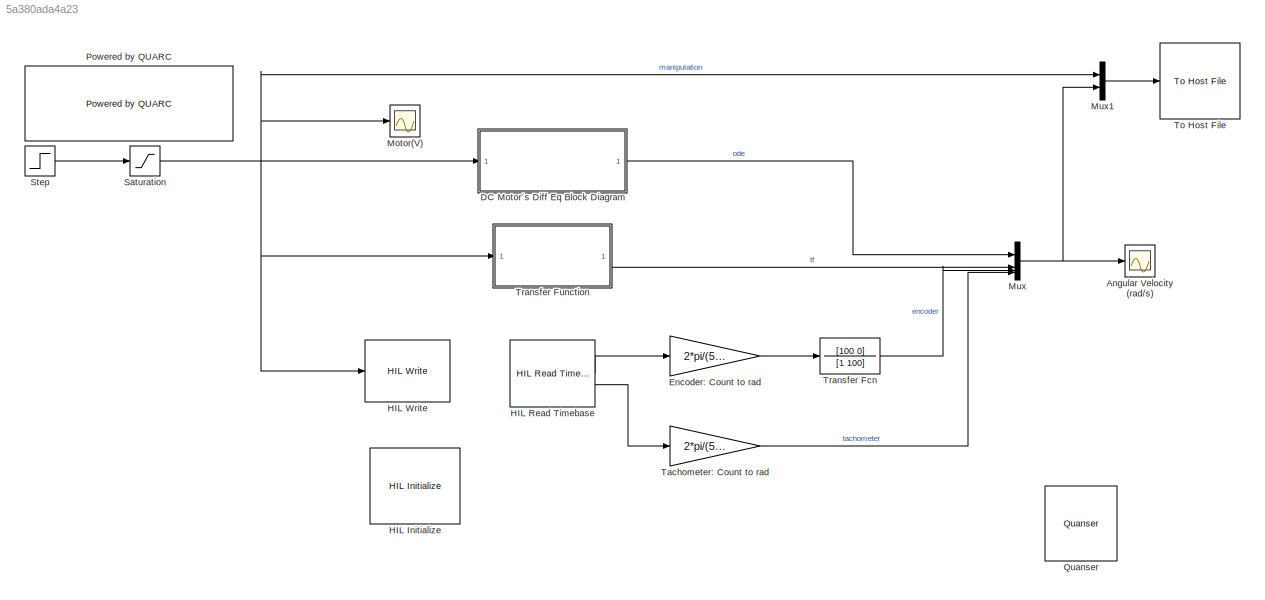
MODEL slx_5a380ada4a23
KIND model
CONFIG AbsTol = auto
CONFIG EnableMultiTasking = on
CONFIG FixedStep = 0.002
CONFIG MaxStep = auto
CONFIG MinStep = auto
CONFIG RelTol = 1e-3
CONFIG SampleTimeConstraint = Unconstrained
CONFIG SolverName = ode1
CONFIG StartTime = 0.0
CONFIG StopTime = 10
BLOCK [Scope] Angular Velocity (rad//s)
  Floating = off
  NumInputPorts = 1
  ScopeSpecificationString = Simulink.scopes.TimeScopeBlockCfg('CurrentConfiguration', extmgr.ConfigurationSet(extmgr.Configuration('Core','General UI',true,'FigureColor',[1 1 1]),extmgr.Configuration('Core','Source UI',true),extmgr.Configuration('Sources','WiredSimulink',true),extmgr.Configuration('Visuals','Time Domain',true,'SerializedDisplays',{struct('MinYLimReal','-15.54726','MaxYLimReal','139.92537','YLabelReal','DC Mo...<+1929ch>
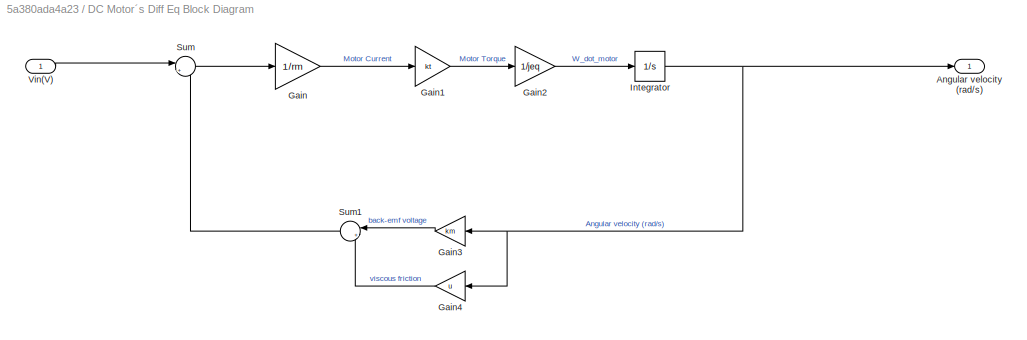
BLOCK [SubSystem] DC Motor´s Diff Eq Block Diagram
BLOCK [Outport] DC Motor´s Diff Eq Block Diagram/Angular velocity (rad//s)
BLOCK [Gain] DC Motor´s Diff Eq Block Diagram/Gain
  Gain = 1/rm
BLOCK [Gain] DC Motor´s Diff Eq Block Diagram/Gain1
  Gain = kt
BLOCK [Gain] DC Motor´s Diff Eq Block Diagram/Gain2
  Gain = 1/jeq
BLOCK [Gain] DC Motor´s Diff Eq Block Diagram/Gain3
  Gain = km
  NameLocation = top
BLOCK [Gain] DC Motor´s Diff Eq Block Diagram/Gain4
  Gain = u
  NameLocation = top
BLOCK [Integrator] DC Motor´s Diff Eq Block Diagram/Integrator
BLOCK [Sum] DC Motor´s Diff Eq Block Diagram/Sum
  Inputs = |+-
BLOCK [Sum] DC Motor´s Diff Eq Block Diagram/Sum1
  Inputs = |++
  NameLocation = top
BLOCK [Inport] DC Motor´s Diff Eq Block Diagram/Vin(V)
BLOCK [Gain] Encoder: Count to rad
  Gain = 2*pi/(512*4)
BLOCK [Reference] HIL Initialize  REF=quarc_library/Data Acquisition/Generic/Configuration/HIL Initialize
  AttributesFormatString = %<object_name> (%<board_type>-%<board_number>)
  SourceBlock = quarc_library/Data Acquisition/Generic/Configuration/HIL Initialize
  SourceProductName = QUARC Targets
  SourceType = HIL Initialize
  UserDataPersistent = on
BLOCK [Reference] HIL Read Timebase  REF=quarc_library/Data Acquisition/Generic/Timebases/HIL Read
Timebase
  AttributesFormatString = (%<object_name>)
  SourceBlock = quarc_library/Data Acquisition/Generic/Timebases/HIL Read\nTimebase
  SourceProductName = QUARC Targets
  SourceType = HIL Read Timebase
  UserDataPersistent = on
BLOCK [Reference] HIL Write  REF=quarc_library/Data Acquisition/Generic/Immediate I//O/HIL Write
  AttributesFormatString = (%<object_name>)
  SourceBlock = quarc_library/Data Acquisition/Generic/Immediate I//O/HIL Write
  SourceProductName = QUARC Targets
  SourceType = HIL Write
  UserDataPersistent = on
BLOCK [Scope] Motor(V)
  Floating = off
  NumInputPorts = 1
  ScopeSpecificationString = Simulink.scopes.TimeScopeBlockCfg('CurrentConfiguration', extmgr.ConfigurationSet(extmgr.Configuration('Core','General UI',true,'FigureColor',[1 1 1]),extmgr.Configuration('Core','Source UI',true),extmgr.Configuration('Sources','WiredSimulink',true,'DataLoggingVariableName','ScopeData1'),extmgr.Configuration('Visuals','Time Domain',true,'SerializedDisplays',{struct('MinYLimReal','2.75','MaxYLimRea...<+1526ch>
BLOCK [Mux] Mux
  DisplayOption = bar
BLOCK [Mux] Mux1
  DisplayOption = bar
  Inputs = 2
BLOCK [Reference] Powered by QUARC  REF=quarc_library/Logos/Powered by QUARC
  SourceBlock = quarc_library/Logos/Powered by QUARC
  SourceProductName = QUARC Targets
  SourceType = Powered by QUARC
BLOCK [Reference] Quanser  REF=quarc_library/Logos/Quanser
  SourceBlock = quarc_library/Logos/Quanser
  SourceProductName = QUARC Targets
  SourceType = Powered by Quanser
BLOCK [Saturate] Saturation
  LowerLimit = -10
  UpperLimit = 10
BLOCK [Step] Step
  After = 5
  Before = 3
  SampleTime = 0
  Time = 3
BLOCK [Gain] Tachometer: Count to rad
  Gain = 2*pi/(512*4)
BLOCK [Reference] To Host File  REF=quarc_library/Sinks/To Host/To Host File
  AttributesFormatString = %<final_file_name>
  SourceBlock = quarc_library/Sinks/To Host/To Host File
  SourceProductName = QUARC Targets
  SourceType = To Host File
BLOCK [TransferFcn] Transfer Fcn
  Denominator = [1 100]
  Numerator = [100 0]
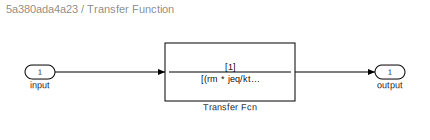
BLOCK [SubSystem] Transfer Function
BLOCK [TransferFcn] Transfer Function/Transfer Fcn
  Denominator = [(rm * jeq/kt) (km+u)]
BLOCK [Inport] Transfer Function/input
BLOCK [Outport] Transfer Function/output
LINE DC Motor´s Diff Eq Block Diagram/Gain1:1 -> DC Motor´s Diff Eq Block Diagram/Gain2:1
LINE DC Motor´s Diff Eq Block Diagram/Gain2:1 -> DC Motor´s Diff Eq Block Diagram/Integrator:1
LINE DC Motor´s Diff Eq Block Diagram/Gain3:1 -> DC Motor´s Diff Eq Block Diagram/Sum1:1
LINE DC Motor´s Diff Eq Block Diagram/Gain4:1 -> DC Motor´s Diff Eq Block Diagram/Sum1:2
LINE DC Motor´s Diff Eq Block Diagram/Gain:1 -> DC Motor´s Diff Eq Block Diagram/Gain1:1
NET DC Motor´s Diff Eq Block Diagram/Integrator:1 -> DC Motor´s Diff Eq Block Diagram/Angular velocity (rad//s):1, DC Motor´s Diff Eq Block Diagram/Gain3:1, DC Motor´s Diff Eq Block Diagram/Gain4:1
LINE DC Motor´s Diff Eq Block Diagram/Sum1:1 -> DC Motor´s Diff Eq Block Diagram/Sum:2
LINE DC Motor´s Diff Eq Block Diagram/Sum:1 -> DC Motor´s Diff Eq Block Diagram/Gain:1
LINE DC Motor´s Diff Eq Block Diagram/Vin(V):1 -> DC Motor´s Diff Eq Block Diagram/Sum:1
LINE DC Motor´s Diff Eq Block Diagram:1 -> Mux:1
LINE Encoder: Count to rad:1 -> Transfer Fcn:1
LINE HIL Read Timebase:1 -> Encoder: Count to rad:1
LINE HIL Read Timebase:2 -> Tachometer: Count to rad:1
LINE Mux1:1 -> To Host File:1
NET Mux:1 -> Angular Velocity (rad//s):1, Mux1:2
NET Saturation:1 -> DC Motor´s Diff Eq Block Diagram:1, HIL Write:1, Motor(V):1, Mux1:1, Transfer Function:1
LINE Step:1 -> Saturation:1
LINE Tachometer: Count to rad:1 -> Mux:4
LINE Transfer Fcn:1 -> Mux:3
LINE Transfer Function/Transfer Fcn:1 -> Transfer Function/output:1
LINE Transfer Function/input:1 -> Transfer Function/Transfer Fcn:1
LINE Transfer Function:1 -> Mux:2
note: NET lines group one-source signal fan-out (src -> all destinations, sorted); 1:1 wires keep LINE
